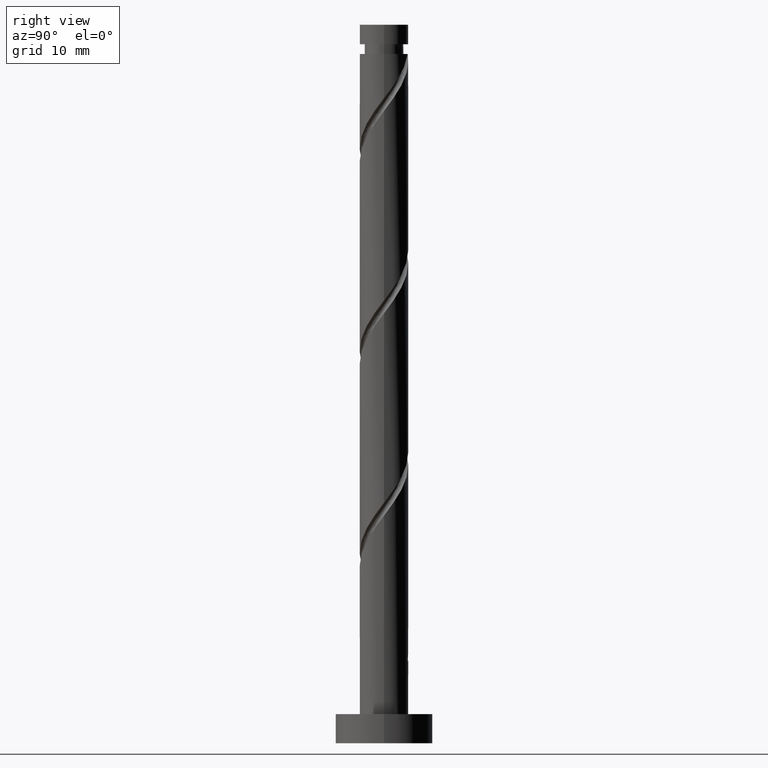
[diagram: clean part render]
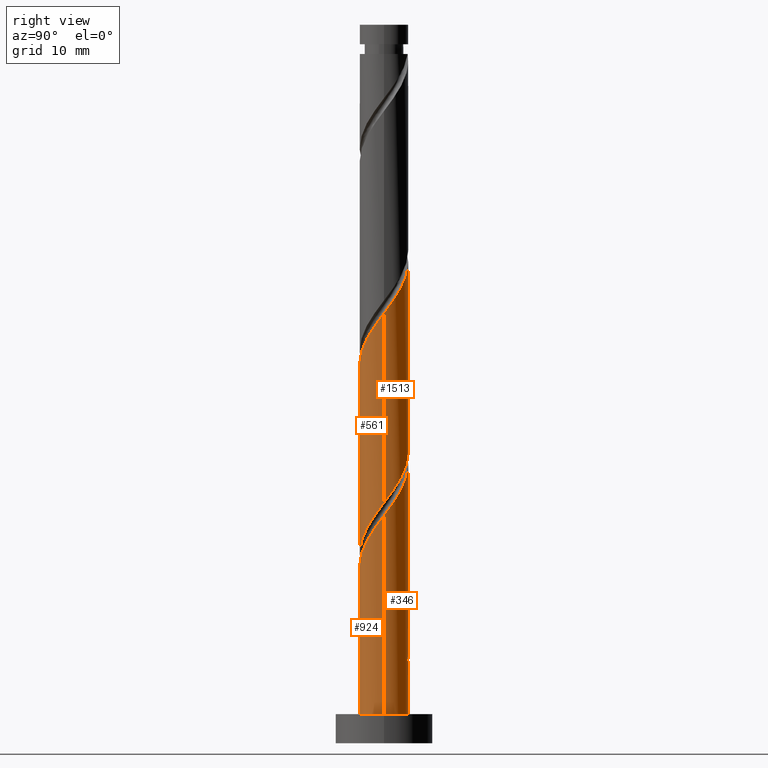
[diagram: same view with one multi-face feature highlighted, each face labeled with its STEP entity id]
A machine part, right view. The highlighted faces form ONE feature: a constant-radius fillet chain: 4 tangent blend faces with common blend radius 2.5 mm. The faces share edges in the B-rep.
Their STEP definitions:
[1] entity #1513 (Cylinder):
#21 = VERTEX_POINT ( 'NONE', #535 ) ;
#36 = CARTESIAN_POINT ( 'NONE',  ( 1.842554741020974607, 1.689672165344843435, 27.23488956316601772 ) ) ;
#43 = CARTESIAN_POINT ( 'NONE',  ( -2.110172521261066692, 1.397840163920918144, 52.75572289649933566 ) ) ;
#108 = CARTESIAN_POINT ( 'NONE',  ( 2.500000000000003109, 0.2512594538148035239, 44.61272503043690563 ) ) ;
#113 = CARTESIAN_POINT ( 'NONE',  ( 2.371204735821965226, 0.8855355973484240195, 45.46405622983268557 ) ) ;
#122 = CARTESIAN_POINT ( 'NONE',  ( -1.574936960780885187, 1.981504166768774500, 51.71405622983267136 ) ) ;
#133 = CARTESIAN_POINT ( 'NONE',  ( -1.397840163920915035, 2.110172521261063583, 31.92238956316600351 ) ) ;
#148 = LINE ( 'NONE', #1572, #1565 ) ;
#234 = EDGE_CURVE ( 'NONE', #21, #551, #1324, .T. ) ;
#261 = CARTESIAN_POINT ( 'NONE',  ( 2.500000000000000888, 0.1424343436160805942, 24.96420309384355463 ) ) ;
#343 = CARTESIAN_POINT ( 'NONE',  ( -0.8855355973484244636, 2.371204735821965226, 50.67238956316600706 ) ) ;
#348 = CARTESIAN_POINT ( 'NONE',  ( 2.500000000000002665, 1.559282689453407426E-15, 44.27842045502907098 ) ) ;
#359 = DIRECTION ( 'NONE',  ( -0.000000000000000000, -0.000000000000000000, -1.000000000000000000 ) ) ;
#372 = CARTESIAN_POINT ( 'NONE',  ( -2.449999999999999734, 0.4974937185533098716, 34.52655622983267847 ) ) ;
#378 = AXIS2_PLACEMENT_3D ( 'NONE', #1085, #359, #1440 ) ;
#416 = VECTOR ( 'NONE', #1156, 1000.000000000000000 ) ;
#445 = CARTESIAN_POINT ( 'NONE',  ( 2.500000000000000444, -2.938648145508366101E-15, 24.77469200463627530 ) ) ;
#453 = CARTESIAN_POINT ( 'NONE',  ( -1.981504166768771391, 1.574936960780883410, 32.96405622983267847 ) ) ;
#463 = CARTESIAN_POINT ( 'NONE',  ( -0.1094518397581948355, 2.528795264178041347, 49.63072289649934277 ) ) ;
#478 = CARTESIAN_POINT ( 'NONE',  ( 1.037592995212146985, 2.274511107092402451, 48.06822289649932856 ) ) ;
#498 = CARTESIAN_POINT ( 'NONE',  ( -0.2839469933725888851, 2.483822478550886448, 30.35988956316601417 ) ) ;
#535 = CARTESIAN_POINT ( 'NONE',  ( -2.500000000000000444, 2.608799884277835441E-15, 35.19135867130293605 ) ) ;
#550 = LINE ( 'NONE', #1170, #416 ) ;
#551 = VERTEX_POINT ( 'NONE', #445 ) ;
#559 = ORIENTED_EDGE ( 'NONE', *, *, #571, .F. ) ;
#571 = EDGE_CURVE ( 'NONE', #1203, #21, #550, .T. ) ;
#589 = CARTESIAN_POINT ( 'NONE',  ( 0.2839469933725902728, 2.483822478550889112, 49.10988956316601417 ) ) ;
#591 = CARTESIAN_POINT ( 'NONE',  ( -2.176354451295366754, 1.230236279064653937, 33.48488956316601417 ) ) ;
#595 = CARTESIAN_POINT ( 'NONE',  ( 1.981504166768774500, 1.574936960780884743, 46.50572289649934987 ) ) ;
#602 = FACE_OUTER_BOUND ( 'NONE', #1362, .T. ) ;
#604 = CARTESIAN_POINT ( 'NONE',  ( -2.500000000000002665, -6.297103168946453709E-16, 54.69508712169576370 ) ) ;
#606 = CARTESIAN_POINT ( 'NONE',  ( -2.499999999999999556, 0.2512594538148041345, 34.85705409589508719 ) ) ;
#671 = VERTEX_POINT ( 'NONE', #833 ) ;
#687 = CARTESIAN_POINT ( 'NONE',  ( 0.1094518397581957930, 2.528795264178037794, 29.83905622983267136 ) ) ;
#743 = CARTESIAN_POINT ( 'NONE',  ( 2.500000000000000444, -2.938648145508366101E-15, 24.77469200463627530 ) ) ;
#750 = CARTESIAN_POINT ( 'NONE',  ( -2.274511107092402451, 1.037592995212146318, 53.27655622983267136 ) ) ;
#751 = ORIENTED_EDGE ( 'NONE', *, *, #234, .F. ) ;
#768 = ORIENTED_EDGE ( 'NONE', *, *, #890, .F. ) ;
#800 = CARTESIAN_POINT ( 'NONE',  ( -2.500000000000003109, -6.297103168946453709E-16, 54.69508712169576370 ) ) ;
#813 = CARTESIAN_POINT ( 'NONE',  ( 1.574936960780883632, 1.981504166768770947, 27.75572289649934277 ) ) ;
#833 = CARTESIAN_POINT ( 'NONE',  ( 2.500000000000002665, 1.559282689453407426E-15, 44.27842045502907098 ) ) ;
#837 = DIRECTION ( 'NONE',  ( -0.000000000000000000, -0.000000000000000000, -1.000000000000000000 ) ) ;
#851 = CARTESIAN_POINT ( 'NONE',  ( -2.371204735821961673, 0.8855355973484234644, 34.00572289649933566 ) ) ;
#890 = EDGE_CURVE ( 'NONE', #671, #1203, #1059, .T. ) ;
#933 = CARTESIAN_POINT ( 'NONE',  ( 0.4974937185533103712, 2.449999999999999734, 29.31822289649934987 ) ) ;
#958 = CARTESIAN_POINT ( 'NONE',  ( 0.6773458265033753811, 2.438849692923736878, 48.58905622983267136 ) ) ;
#988 = CARTESIAN_POINT ( 'NONE',  ( -1.842554741020976383, 1.689672165344846544, 52.23488956316599996 ) ) ;
#1052 = CARTESIAN_POINT ( 'NONE',  ( 0.8855355973484239085, 2.371204735821961229, 28.79738956316599996 ) ) ;
#1059 =( BOUNDED_CURVE ( )  B_SPLINE_CURVE ( 2, ( #348, #108, #1313, #113, #1303, #595, #1062, #1549, #478, #958, #589, #463, #1071, #343, #1559, #122, #988, #43, #750, #1207, #1251, #1486, #604 ),
 .UNSPECIFIED., .F., .T. ) 
 B_SPLINE_CURVE_WITH_KNOTS ( ( 3, 2, 2, 2, 2, 2, 2, 2, 2, 2, 2, 3 ),
 ( 0.4295322023138552492, 0.4375000000000000000, 0.4499999999999999556, 0.4625000000000000222, 0.4749999999999999778, 0.4875000000000000444, 0.5000000000000000000, 0.5124999999999999556, 0.5250000000000000222, 0.5374999999999999778, 0.5500000000000000444, 0.5545322023138553602 ),
 .UNSPECIFIED. ) 
 CURVE ( )  GEOMETRIC_REPRESENTATION_ITEM ( )  RATIONAL_B_SPLINE_CURVE ( ( 0.9039174447099327381, 0.9019565955404621471, 0.9090909090909105039, 0.8978984914501265679, 0.9090909090909105039, 0.8978984914501265679, 0.9090909090909105039, 0.8978984914501265679, 0.9090909090909105039, 0.8978984914501265679, 0.9090909090909105039, 0.8978984914501265679, 0.9090909090909105039, 0.8978984914501265679, 0.9090909090909105039, 0.8978984914501265679, 0.9090909090909105039, 0.8978984914501265679, 0.9090909090909105039, 0.8978984914501265679, 0.9090909090909105039, 0.9050328050005747027, 0.9039174447099325160 ) ) 
 REPRESENTATION_ITEM ( '' )  );
#1062 = CARTESIAN_POINT ( 'NONE',  ( 1.689672165344846988, 1.842554741020975939, 47.02655622983266426 ) ) ;
#1071 = CARTESIAN_POINT ( 'NONE',  ( -0.4974937185533093720, 2.450000000000004174, 50.15155622983268557 ) ) ;
#1085 = CARTESIAN_POINT ( 'NONE',  ( 0.000000000000000000, 0.000000000000000000, 74.00000000000000000 ) ) ;
#1122 = CARTESIAN_POINT ( 'NONE',  ( 2.483822478550886892, 0.2839469933725883299, 25.15155622983268202 ) ) ;
#1156 = DIRECTION ( 'NONE',  ( -0.000000000000000000, -0.000000000000000000, -1.000000000000000000 ) ) ;
#1170 = CARTESIAN_POINT ( 'NONE',  ( -2.500000000000000000, 0.000000000000000000, 74.00000000000000000 ) ) ;
#1203 = VERTEX_POINT ( 'NONE', #800 ) ;
#1207 = CARTESIAN_POINT ( 'NONE',  ( -2.438849692923736878, 0.6773458265033748260, 53.79738956316601417 ) ) ;
#1209 = CARTESIAN_POINT ( 'NONE',  ( -2.500000000000000444, 2.608799884277835441E-15, 35.19135867130293605 ) ) ;
#1221 = CARTESIAN_POINT ( 'NONE',  ( -1.037592995212144764, 2.274511107092399342, 31.40155622983268557 ) ) ;
#1225 = CYLINDRICAL_SURFACE ( 'NONE', #378, 2.500000000000000000 ) ;
#1251 = CARTESIAN_POINT ( 'NONE',  ( -2.483822478550889112, 0.2839469933725897177, 54.31822289649934987 ) ) ;
#1254 = CARTESIAN_POINT ( 'NONE',  ( 2.274511107092399786, 1.037592995212144320, 26.19322289649934987 ) ) ;
#1303 = CARTESIAN_POINT ( 'NONE',  ( 2.176354451295370307, 1.230236279064654381, 45.98488956316601417 ) ) ;
#1313 = CARTESIAN_POINT ( 'NONE',  ( 2.450000000000004174, 0.4974937185533096495, 44.94322289649934277 ) ) ;
#1324 =( BOUNDED_CURVE ( )  B_SPLINE_CURVE ( 2, ( #1209, #606, #372, #851, #591, #453, #1336, #133, #1221, #1539, #498, #687, #933, #1052, #1415, #813, #36, #1477, #1254, #1347, #1122, #261, #743 ),
 .UNSPECIFIED., .F., .F. ) 
 B_SPLINE_CURVE_WITH_KNOTS ( ( 3, 2, 2, 2, 2, 2, 2, 2, 2, 2, 2, 3 ),
 ( 0.6795322023138552492, 0.6875000000000000000, 0.6999999999999999556, 0.7125000000000000222, 0.7249999999999999778, 0.7375000000000000444, 0.7500000000000000000, 0.7624999999999999556, 0.7750000000000000222, 0.7874999999999999778, 0.8000000000000000444, 0.8045322023138552492 ),
 .UNSPECIFIED. ) 
 CURVE ( )  GEOMETRIC_REPRESENTATION_ITEM ( )  RATIONAL_B_SPLINE_CURVE ( ( 0.9039174447099262988, 0.9019565955404558188, 0.9090909090909039536, 0.8978984914501202397, 0.9090909090909039536, 0.8978984914501202397, 0.9090909090909039536, 0.8978984914501202397, 0.9090909090909039536, 0.8978984914501202397, 0.9090909090909039536, 0.8978984914501202397, 0.9090909090909039536, 0.8978984914501202397, 0.9090909090909039536, 0.8978984914501202397, 0.9090909090909039536, 0.8978984914501202397, 0.9090909090909039536, 0.8978984914501202397, 0.9090909090909039536, 0.9050328050005683744, 0.9039174447099262988 ) ) 
 REPRESENTATION_ITEM ( '' )  );
#1336 = CARTESIAN_POINT ( 'NONE',  ( -1.689672165344843879, 1.842554741020974163, 32.44322289649934277 ) ) ;
#1347 = CARTESIAN_POINT ( 'NONE',  ( 2.438849692923733326, 0.6773458265033731607, 25.67238956316599996 ) ) ;
#1362 = EDGE_LOOP ( 'NONE', ( #768, #1515, #751, #559 ) ) ;
#1415 = CARTESIAN_POINT ( 'NONE',  ( 1.230236279064654159, 2.176354451295366754, 28.27655622983267847 ) ) ;
#1440 = DIRECTION ( 'NONE',  ( -1.000000000000000000, 0.000000000000000000, 0.000000000000000000 ) ) ;
#1477 = CARTESIAN_POINT ( 'NONE',  ( 2.110172521261064027, 1.397840163920914813, 26.71405622983267492 ) ) ;
#1486 = CARTESIAN_POINT ( 'NONE',  ( -2.500000000000003997, 0.1424343436160784016, 54.50557603248847727 ) ) ;
#1513 = ADVANCED_FACE ( 'NONE', ( #602 ), #1225, .T. ) ;
#1515 = ORIENTED_EDGE ( 'NONE', *, *, #1562, .T. ) ;
#1539 = CARTESIAN_POINT ( 'NONE',  ( -0.6773458265033731607, 2.438849692923732881, 30.88072289649934277 ) ) ;
#1549 = CARTESIAN_POINT ( 'NONE',  ( 1.397840163920918588, 2.110172521261066692, 47.54738956316599996 ) ) ;
#1559 = CARTESIAN_POINT ( 'NONE',  ( -1.230236279064654825, 2.176354451295369863, 51.19322289649933566 ) ) ;
#1562 = EDGE_CURVE ( 'NONE', #671, #551, #148, .T. ) ;
#1565 = VECTOR ( 'NONE', #837, 1000.000000000000000 ) ;
#1572 = CARTESIAN_POINT ( 'NONE',  ( 2.500000000000000000, 3.061616997868383141E-16, 74.00000000000000000 ) ) ;
[2] entity #561 (Cylinder):
#25 =( BOUNDED_CURVE ( )  B_SPLINE_CURVE ( 2, ( #193, #1017, #1504, #1275, #675, #683, #418, #1161, #298, #1511, #1168, #321, #304, #313, #1147, #426, #896, #794, #1024, #85, #1379, #59, #801 ),
 .UNSPECIFIED., .F., .F. ) 
 B_SPLINE_CURVE_WITH_KNOTS ( ( 3, 2, 2, 2, 2, 2, 2, 2, 2, 2, 2, 3 ),
 ( 0.3045322023138552492, 0.3125000000000000000, 0.3249999999999999556, 0.3375000000000000222, 0.3499999999999999778, 0.3625000000000000444, 0.3750000000000000000, 0.3874999999999999556, 0.4000000000000000222, 0.4124999999999999778, 0.4250000000000000444, 0.4295322023138552492 ),
 .UNSPECIFIED. ) 
 CURVE ( )  GEOMETRIC_REPRESENTATION_ITEM ( )  RATIONAL_B_SPLINE_CURVE ( ( 0.9039174447099327381, 0.9019565955404621471, 0.9090909090909105039, 0.8978984914501265679, 0.9090909090909105039, 0.8978984914501265679, 0.9090909090909105039, 0.8978984914501265679, 0.9090909090909105039, 0.8978984914501265679, 0.9090909090909105039, 0.8978984914501265679, 0.9090909090909105039, 0.8978984914501265679, 0.9090909090909105039, 0.8978984914501265679, 0.9090909090909105039, 0.8978984914501265679, 0.9090909090909105039, 0.8978984914501265679, 0.9090909090909105039, 0.9050328050005749247, 0.9039174447099327381 ) ) 
 REPRESENTATION_ITEM ( '' )  );
#59 = CARTESIAN_POINT ( 'NONE',  ( 2.500000000000003109, -0.1424343436160822041, 44.08890936582179165 ) ) ;
#85 = CARTESIAN_POINT ( 'NONE',  ( 2.438849692923736878, -0.6773458265033750481, 43.38072289649933566 ) ) ;
#102 = CARTESIAN_POINT ( 'NONE',  ( -2.110172521261063583, -1.397840163920915035, 16.29738956316600706 ) ) ;
#148 = LINE ( 'NONE', #1572, #1565 ) ;
#192 = CARTESIAN_POINT ( 'NONE',  ( -2.500000000000003109, -1.919117156250347722E-15, 33.86175378836241379 ) ) ;
#193 = CARTESIAN_POINT ( 'NONE',  ( -2.500000000000003109, -1.919117156250347722E-15, 33.86175378836241379 ) ) ;
#206 = LINE ( 'NONE', #689, #511 ) ;
#210 = CYLINDRICAL_SURFACE ( 'NONE', #817, 2.500000000000000000 ) ;
#223 = CARTESIAN_POINT ( 'NONE',  ( 1.981504166768770947, -1.574936960780883410, 22.54738956316600706 ) ) ;
#230 = CARTESIAN_POINT ( 'NONE',  ( -1.842554741020974163, -1.689672165344843435, 16.81822289649933566 ) ) ;
#298 = CARTESIAN_POINT ( 'NONE',  ( -1.037592995212146540, -2.274511107092402007, 37.65155622983267136 ) ) ;
#304 = CARTESIAN_POINT ( 'NONE',  ( 0.4974937185533097606, -2.450000000000004174, 39.73488956316600706 ) ) ;
#313 = CARTESIAN_POINT ( 'NONE',  ( 0.8855355973484242416, -2.371204735821965226, 40.25572289649933566 ) ) ;
#321 = CARTESIAN_POINT ( 'NONE',  ( 0.1094518397581950991, -2.528795264178041347, 39.21405622983267847 ) ) ;
#335 = CARTESIAN_POINT ( 'NONE',  ( -1.230236279064653937, -2.176354451295366754, 17.85988956316601772 ) ) ;
#342 = CARTESIAN_POINT ( 'NONE',  ( 2.449999999999999734, -0.4974937185533101491, 24.10988956316601417 ) ) ;
#351 = CARTESIAN_POINT ( 'NONE',  ( 2.499999999999999556, -0.2512594538148044676, 24.44038742922842644 ) ) ;
#418 = CARTESIAN_POINT ( 'NONE',  ( -1.689672165344846544, -1.842554741020976161, 36.60988956316599996 ) ) ;
#420 = EDGE_CURVE ( 'NONE', #1239, #1407, #206, .T. ) ;
#426 = CARTESIAN_POINT ( 'NONE',  ( 1.574936960780884743, -1.981504166768774500, 41.29738956316599996 ) ) ;
#445 = CARTESIAN_POINT ( 'NONE',  ( 2.500000000000000444, -2.938648145508366101E-15, 24.77469200463627530 ) ) ;
#511 = VECTOR ( 'NONE', #1174, 1000.000000000000000 ) ;
#551 = VERTEX_POINT ( 'NONE', #445 ) ;
#561 = ADVANCED_FACE ( 'NONE', ( #1413 ), #210, .T. ) ;
#573 = CARTESIAN_POINT ( 'NONE',  ( 1.397840163920915035, -2.110172521261064027, 21.50572289649934277 ) ) ;
#578 = CARTESIAN_POINT ( 'NONE',  ( 2.371204735821961229, -0.8855355973484237975, 23.58905622983267492 ) ) ;
#583 = CARTESIAN_POINT ( 'NONE',  ( -2.500000000000000888, -0.1424343436160809273, 14.54753642717688500 ) ) ;
#593 = CARTESIAN_POINT ( 'NONE',  ( 1.689672165344843435, -1.842554741020974163, 22.02655622983267847 ) ) ;
#614 = EDGE_CURVE ( 'NONE', #1239, #671, #25, .T. ) ;
#670 = CARTESIAN_POINT ( 'NONE',  ( 0.000000000000000000, 0.000000000000000000, 74.00000000000000000 ) ) ;
#671 = VERTEX_POINT ( 'NONE', #833 ) ;
#675 = CARTESIAN_POINT ( 'NONE',  ( -2.176354451295370307, -1.230236279064654825, 35.56822289649933566 ) ) ;
#683 = CARTESIAN_POINT ( 'NONE',  ( -1.981504166768774500, -1.574936960780885187, 36.08905622983268557 ) ) ;
#689 = CARTESIAN_POINT ( 'NONE',  ( -2.500000000000000000, 0.000000000000000000, 74.00000000000000000 ) ) ;
#706 = CARTESIAN_POINT ( 'NONE',  ( -0.1094518397581961261, -2.528795264178037794, 19.42238956316600706 ) ) ;
#790 = ORIENTED_EDGE ( 'NONE', *, *, #420, .T. ) ;
#794 = CARTESIAN_POINT ( 'NONE',  ( 2.110172521261066692, -1.397840163920918588, 42.33905622983267136 ) ) ;
#801 = CARTESIAN_POINT ( 'NONE',  ( 2.500000000000002665, 1.559282689453407426E-15, 44.27842045502907098 ) ) ;
#817 = AXIS2_PLACEMENT_3D ( 'NONE', #670, #908, #1277 ) ;
#822 = CARTESIAN_POINT ( 'NONE',  ( 0.2839469933725885520, -2.483822478550886892, 19.94322289649934632 ) ) ;
#832 = CARTESIAN_POINT ( 'NONE',  ( 2.176354451295366754, -1.230236279064654159, 23.06822289649934987 ) ) ;
#833 = CARTESIAN_POINT ( 'NONE',  ( 2.500000000000002665, 1.559282689453407426E-15, 44.27842045502907098 ) ) ;
#837 = DIRECTION ( 'NONE',  ( -0.000000000000000000, -0.000000000000000000, -1.000000000000000000 ) ) ;
#896 = CARTESIAN_POINT ( 'NONE',  ( 1.842554741020976161, -1.689672165344846544, 41.81822289649933566 ) ) ;
#908 = DIRECTION ( 'NONE',  ( -0.000000000000000000, -0.000000000000000000, -1.000000000000000000 ) ) ;
#966 = ORIENTED_EDGE ( 'NONE', *, *, #614, .F. ) ;
#1017 = CARTESIAN_POINT ( 'NONE',  ( -2.500000000000003553, -0.2512594538148039125, 34.19605836377024133 ) ) ;
#1024 = CARTESIAN_POINT ( 'NONE',  ( 2.274511107092402007, -1.037592995212146540, 42.85988956316600706 ) ) ;
#1070 = CARTESIAN_POINT ( 'NONE',  ( -2.483822478550886892, -0.2839469933725886075, 14.73488956316600884 ) ) ;
#1075 = CARTESIAN_POINT ( 'NONE',  ( -2.500000000000000444, 2.608799884277835441E-15, 14.35802533796960390 ) ) ;
#1102 = EDGE_LOOP ( 'NONE', ( #1328, #966, #790, #1245 ) ) ;
#1147 = CARTESIAN_POINT ( 'NONE',  ( 1.230236279064654603, -2.176354451295370307, 40.77655622983266426 ) ) ;
#1161 = CARTESIAN_POINT ( 'NONE',  ( -1.397840163920918366, -2.110172521261066692, 37.13072289649934277 ) ) ;
#1168 = CARTESIAN_POINT ( 'NONE',  ( -0.2839469933725899953, -2.483822478550889112, 38.69322289649935698 ) ) ;
#1174 = DIRECTION ( 'NONE',  ( -0.000000000000000000, -0.000000000000000000, -1.000000000000000000 ) ) ;
#1191 = CARTESIAN_POINT ( 'NONE',  ( -2.274511107092399342, -1.037592995212144542, 15.77655622983267847 ) ) ;
#1198 = CARTESIAN_POINT ( 'NONE',  ( -2.500000000000000444, 2.608799884277835441E-15, 14.35802533796960390 ) ) ;
#1239 = VERTEX_POINT ( 'NONE', #192 ) ;
#1245 = ORIENTED_EDGE ( 'NONE', *, *, #1482, .F. ) ;
#1275 = CARTESIAN_POINT ( 'NONE',  ( -2.371204735821965226, -0.8855355973484243526, 35.04738956316601417 ) ) ;
#1277 = DIRECTION ( 'NONE',  ( -1.000000000000000000, 0.000000000000000000, 0.000000000000000000 ) ) ;
#1307 = CARTESIAN_POINT ( 'NONE',  ( -1.574936960780883410, -1.981504166768770947, 17.33905622983267492 ) ) ;
#1316 = CARTESIAN_POINT ( 'NONE',  ( 1.037592995212144542, -2.274511107092399342, 20.98488956316601062 ) ) ;
#1328 = ORIENTED_EDGE ( 'NONE', *, *, #1562, .F. ) ;
#1379 = CARTESIAN_POINT ( 'NONE',  ( 2.483822478550889112, -0.2839469933725900508, 43.90155622983267136 ) ) ;
#1407 = VERTEX_POINT ( 'NONE', #1075 ) ;
#1413 = FACE_OUTER_BOUND ( 'NONE', #1102, .T. ) ;
#1418 = CARTESIAN_POINT ( 'NONE',  ( -0.8855355973484237975, -2.371204735821961229, 18.38072289649934632 ) ) ;
#1424 = CARTESIAN_POINT ( 'NONE',  ( 0.6773458265033731607, -2.438849692923732881, 20.46405622983266781 ) ) ;
#1433 = CARTESIAN_POINT ( 'NONE',  ( 2.500000000000000444, -2.938648145508366101E-15, 24.77469200463627530 ) ) ;
#1482 = EDGE_CURVE ( 'NONE', #551, #1407, #1491, .T. ) ;
#1491 =( BOUNDED_CURVE ( )  B_SPLINE_CURVE ( 2, ( #1433, #351, #342, #578, #832, #223, #593, #573, #1316, #1424, #822, #706, #1547, #1418, #335, #1307, #230, #102, #1191, #1563, #1070, #583, #1198 ),
 .UNSPECIFIED., .F., .F. ) 
 B_SPLINE_CURVE_WITH_KNOTS ( ( 3, 2, 2, 2, 2, 2, 2, 2, 2, 2, 2, 3 ),
 ( 0.8045322023138552492, 0.8125000000000000000, 0.8249999999999999556, 0.8375000000000000222, 0.8499999999999999778, 0.8625000000000000444, 0.8750000000000000000, 0.8874999999999999556, 0.9000000000000000222, 0.9124999999999999778, 0.9250000000000000444, 0.9295322023138552492 ),
 .UNSPECIFIED. ) 
 CURVE ( )  GEOMETRIC_REPRESENTATION_ITEM ( )  RATIONAL_B_SPLINE_CURVE ( ( 0.9039174447099262988, 0.9019565955404558188, 0.9090909090909039536, 0.8978984914501202397, 0.9090909090909039536, 0.8978984914501202397, 0.9090909090909039536, 0.8978984914501202397, 0.9090909090909039536, 0.8978984914501202397, 0.9090909090909039536, 0.8978984914501202397, 0.9090909090909039536, 0.8978984914501202397, 0.9090909090909039536, 0.8978984914501202397, 0.9090909090909039536, 0.8978984914501202397, 0.9090909090909039536, 0.8978984914501202397, 0.9090909090909039536, 0.9050328050005683744, 0.9039174447099262988 ) ) 
 REPRESENTATION_ITEM ( '' )  );
#1504 = CARTESIAN_POINT ( 'NONE',  ( -2.450000000000004174, -0.4974937185533099271, 34.52655622983265715 ) ) ;
#1511 = CARTESIAN_POINT ( 'NONE',  ( -0.6773458265033750481, -2.438849692923736878, 38.17238956316599996 ) ) ;
#1547 = CARTESIAN_POINT ( 'NONE',  ( -0.4974937185533099271, -2.449999999999999734, 18.90155622983268557 ) ) ;
#1562 = EDGE_CURVE ( 'NONE', #671, #551, #148, .T. ) ;
#1563 = CARTESIAN_POINT ( 'NONE',  ( -2.438849692923732881, -0.6773458265033731607, 15.25572289649934099 ) ) ;
#1565 = VECTOR ( 'NONE', #837, 1000.000000000000000 ) ;
#1572 = CARTESIAN_POINT ( 'NONE',  ( 2.500000000000000000, 3.061616997868383141E-16, 74.00000000000000000 ) ) ;
[3] entity #346 (Cylinder):
#50 = CARTESIAN_POINT ( 'NONE',  ( 2.500000000000000000, 3.061616997868383141E-16, 74.00000000000000000 ) ) ;
#57 = CARTESIAN_POINT ( 'NONE',  ( -2.176354451295366754, 1.230236279064653937, 12.65155622983267669 ) ) ;
#66 = CARTESIAN_POINT ( 'NONE',  ( -2.371204735821961673, 0.8855355973484234644, 13.17238956316601062 ) ) ;
#87 = DIRECTION ( 'NONE',  ( -1.000000000000000000, 0.000000000000000000, 0.000000000000000000 ) ) ;
#90 = CARTESIAN_POINT ( 'NONE',  ( 0.000000000000000000, 0.000000000000000000, 8.484889563166008841 ) ) ;
#112 = CARTESIAN_POINT ( 'NONE',  ( -2.500000000000003109, 0.1424343436160818432, 12.83890936582179698 ) ) ;
#130 = CARTESIAN_POINT ( 'NONE',  ( 1.397840163920918588, 2.110172521261066692, 26.71405622983267847 ) ) ;
#141 = CARTESIAN_POINT ( 'NONE',  ( -1.842554741020976383, 1.689672165344846544, 31.40155622983267847 ) ) ;
#142 = ORIENTED_EDGE ( 'NONE', *, *, #420, .F. ) ;
#155 = CARTESIAN_POINT ( 'NONE',  ( 0.000000000000000000, 0.000000000000000000, 74.00000000000000000 ) ) ;
#175 = LINE ( 'NONE', #50, #913 ) ;
#185 = CARTESIAN_POINT ( 'NONE',  ( 2.500000000000002665, 1.559282689453407426E-15, 23.44508712169574238 ) ) ;
#192 = CARTESIAN_POINT ( 'NONE',  ( -2.500000000000003109, -1.919117156250347722E-15, 33.86175378836241379 ) ) ;
#206 = LINE ( 'NONE', #689, #511 ) ;
#217 = CARTESIAN_POINT ( 'NONE',  ( -1.230236279064654825, 2.176354451295369863, 9.526556229832674916 ) ) ;
#272 = DIRECTION ( 'NONE',  ( -0.000000000000000000, -0.000000000000000000, -1.000000000000000000 ) ) ;
#290 = CARTESIAN_POINT ( 'NONE',  ( -2.500000000000003109, -1.919117156250347722E-15, 33.86175378836241379 ) ) ;
#320 = CARTESIAN_POINT ( 'NONE',  ( 0.4974937185533103712, 2.449999999999999734, 8.484889563166008841 ) ) ;
#346 = ADVANCED_FACE ( 'NONE', ( #1003 ), #873, .T. ) ;
#347 = CARTESIAN_POINT ( 'NONE',  ( -2.274511107092402451, 1.037592995212146318, 11.60988956316601062 ) ) ;
#358 =( BOUNDED_CURVE ( )  B_SPLINE_CURVE ( 2, ( #1296, #1554, #217, #456, #712, #1055, #347, #701, #476, #112, #1311 ),
 .UNSPECIFIED., .F., .F. ) 
 B_SPLINE_CURVE_WITH_KNOTS ( ( 3, 2, 2, 2, 2, 3 ),
 ( 0.000000000000000000, 0.01249999999999995559, 0.02500000000000002220, 0.03749999999999997780, 0.05000000000000004441, 0.05453220231385524919 ),
 .UNSPECIFIED. ) 
 CURVE ( )  GEOMETRIC_REPRESENTATION_ITEM ( )  RATIONAL_B_SPLINE_CURVE ( ( 0.9090909090909105039, 0.8978984914501265679, 0.9090909090909105039, 0.8978984914501265679, 0.9090909090909105039, 0.8978984914501265679, 0.9090909090909105039, 0.8978984914501265679, 0.9090909090909105039, 0.9050328050005749247, 0.9039174447099327381 ) ) 
 REPRESENTATION_ITEM ( '' )  );
#370 = VERTEX_POINT ( 'NONE', #1287 ) ;
#375 = ORIENTED_EDGE ( 'NONE', *, *, #1292, .F. ) ;
#408 = CARTESIAN_POINT ( 'NONE',  ( -2.500000000000003109, 0.1424343436160818432, 33.67224269915513446 ) ) ;
#413 = ORIENTED_EDGE ( 'NONE', *, *, #1403, .F. ) ;
#420 = EDGE_CURVE ( 'NONE', #1239, #1407, #206, .T. ) ;
#428 = EDGE_CURVE ( 'NONE', #797, #616, #1398, .T. ) ;
#438 = ORIENTED_EDGE ( 'NONE', *, *, #428, .T. ) ;
#456 = CARTESIAN_POINT ( 'NONE',  ( -1.574936960780885187, 1.981504166768774500, 10.04738956316600884 ) ) ;
#468 = DIRECTION ( 'NONE',  ( -0.000000000000000000, -0.000000000000000000, -1.000000000000000000 ) ) ;
#476 = CARTESIAN_POINT ( 'NONE',  ( -2.483822478550889112, 0.2839469933725897177, 12.65155622983267314 ) ) ;
#485 = CARTESIAN_POINT ( 'NONE',  ( -1.574936960780885187, 1.981504166768774500, 30.88072289649934277 ) ) ;
#506 = CARTESIAN_POINT ( 'NONE',  ( 1.689672165344846988, 1.842554741020975939, 26.19322289649934277 ) ) ;
#511 = VECTOR ( 'NONE', #1174, 1000.000000000000000 ) ;
#512 = ORIENTED_EDGE ( 'NONE', *, *, #910, .F. ) ;
#524 = CARTESIAN_POINT ( 'NONE',  ( -0.4974937185533093720, 2.450000000000004174, 29.31822289649934632 ) ) ;
#539 = CARTESIAN_POINT ( 'NONE',  ( -1.397840163920915035, 2.110172521261063583, 11.08905622983266959 ) ) ;
#543 = VERTEX_POINT ( 'NONE', #1026 ) ;
#579 = DIRECTION ( 'NONE',  ( 1.000000000000000000, 0.000000000000000000, 0.000000000000000000 ) ) ;
#616 = VERTEX_POINT ( 'NONE', #809 ) ;
#622 = CARTESIAN_POINT ( 'NONE',  ( 0.2839469933725902728, 2.483822478550889112, 28.27655622983267847 ) ) ;
#667 = CARTESIAN_POINT ( 'NONE',  ( -2.500000000000000444, 2.608799884277835441E-15, 14.35802533796960390 ) ) ;
#674 = CARTESIAN_POINT ( 'NONE',  ( -0.6773458265033731607, 2.438849692923732881, 10.04738956316601239 ) ) ;
#689 = CARTESIAN_POINT ( 'NONE',  ( -2.500000000000000000, 0.000000000000000000, 74.00000000000000000 ) ) ;
#691 = CARTESIAN_POINT ( 'NONE',  ( -2.500000000000000000, 0.000000000000000000, 74.00000000000000000 ) ) ;
#701 = CARTESIAN_POINT ( 'NONE',  ( -2.438849692923736878, 0.6773458265033748260, 12.13072289649934454 ) ) ;
#707 = CARTESIAN_POINT ( 'NONE',  ( 0.000000000000000000, 0.000000000000000000, 3.000000000000000000 ) ) ;
#712 = CARTESIAN_POINT ( 'NONE',  ( -1.842554741020976383, 1.689672165344846544, 10.56822289649934277 ) ) ;
#735 = ORIENTED_EDGE ( 'NONE', *, *, #802, .T. ) ;
#753 = DIRECTION ( 'NONE',  ( -1.000000000000000000, 0.000000000000000000, 0.000000000000000000 ) ) ;
#797 = VERTEX_POINT ( 'NONE', #1199 ) ;
#802 = EDGE_CURVE ( 'NONE', #543, #1349, #1082, .T. ) ;
#809 = CARTESIAN_POINT ( 'NONE',  ( 0.4974937185533103712, 2.450000000000000178, 8.484889563166008841 ) ) ;
#812 = AXIS2_PLACEMENT_3D ( 'NONE', #707, #942, #579 ) ;
#873 = CYLINDRICAL_SURFACE ( 'NONE', #1192, 2.500000000000000000 ) ;
#880 = CARTESIAN_POINT ( 'NONE',  ( -2.274511107092402451, 1.037592995212146318, 32.44322289649933566 ) ) ;
#906 =( BOUNDED_CURVE ( )  B_SPLINE_CURVE ( 2, ( #667, #1393, #1146, #66, #57, #1032, #1402, #539, #1023, #674, #1039, #1527, #320 ),
 .UNSPECIFIED., .F., .F. ) 
 B_SPLINE_CURVE_WITH_KNOTS ( ( 3, 2, 2, 2, 2, 2, 3 ),
 ( 0.9295322023138552492, 0.9375000000000000000, 0.9499999999999999556, 0.9625000000000000222, 0.9749999999999999778, 0.9875000000000000444, 1.000000000000000000 ),
 .UNSPECIFIED. ) 
 CURVE ( )  GEOMETRIC_REPRESENTATION_ITEM ( )  RATIONAL_B_SPLINE_CURVE ( ( 0.9039174447099262988, 0.9019565955404558188, 0.9090909090909039536, 0.8978984914501202397, 0.9090909090909039536, 0.8978984914501202397, 0.9090909090909039536, 0.8978984914501202397, 0.9090909090909039536, 0.8978984914501202397, 0.9090909090909039536, 0.8978984914501202397, 0.9090909090909039536 ) ) 
 REPRESENTATION_ITEM ( '' )  );
#910 = EDGE_CURVE ( 'NONE', #1233, #1239, #1218, .T. ) ;
#913 = VECTOR ( 'NONE', #1153, 1000.000000000000000 ) ;
#942 = DIRECTION ( 'NONE',  ( 0.000000000000000000, 0.000000000000000000, 1.000000000000000000 ) ) ;
#950 = LINE ( 'NONE', #691, #1465 ) ;
#976 = CARTESIAN_POINT ( 'NONE',  ( 2.500000000000003553, 0.2512594538148026913, 23.77939169710358414 ) ) ;
#989 = ORIENTED_EDGE ( 'NONE', *, *, #1172, .T. ) ;
#999 = CARTESIAN_POINT ( 'NONE',  ( 2.500000000000002665, 1.559282689453407426E-15, 23.44508712169574238 ) ) ;
#1003 = FACE_OUTER_BOUND ( 'NONE', #1497, .T. ) ;
#1008 = CARTESIAN_POINT ( 'NONE',  ( -1.230236279064654825, 2.176354451295369863, 30.35988956316599996 ) ) ;
#1023 = CARTESIAN_POINT ( 'NONE',  ( -1.037592995212144764, 2.274511107092399342, 10.56822289649934632 ) ) ;
#1026 = CARTESIAN_POINT ( 'NONE',  ( 2.500000000000000000, 3.061616997868383141E-16, 3.000000000000000000 ) ) ;
#1032 = CARTESIAN_POINT ( 'NONE',  ( -1.981504166768771391, 1.574936960780883410, 12.13072289649934454 ) ) ;
#1039 = CARTESIAN_POINT ( 'NONE',  ( -0.2839469933725888851, 2.483822478550886448, 9.526556229832680245 ) ) ;
#1055 = CARTESIAN_POINT ( 'NONE',  ( -2.110172521261066692, 1.397840163920918144, 11.08905622983267314 ) ) ;
#1075 = CARTESIAN_POINT ( 'NONE',  ( -2.500000000000000444, 2.608799884277835441E-15, 14.35802533796960390 ) ) ;
#1082 = CIRCLE ( 'NONE', #812, 2.500000000000000000 ) ;
#1087 = CARTESIAN_POINT ( 'NONE',  ( 1.981504166768774500, 1.574936960780884743, 25.67238956316601417 ) ) ;
#1096 = CARTESIAN_POINT ( 'NONE',  ( 2.176354451295370307, 1.230236279064654381, 25.15155622983267847 ) ) ;
#1108 = CARTESIAN_POINT ( 'NONE',  ( -2.110172521261066692, 1.397840163920918144, 31.92238956316600351 ) ) ;
#1129 = CARTESIAN_POINT ( 'NONE',  ( 1.037592995212146985, 2.274511107092402451, 27.23488956316600706 ) ) ;
#1146 = CARTESIAN_POINT ( 'NONE',  ( -2.449999999999999734, 0.4974937185533098716, 13.69322289649934454 ) ) ;
#1153 = DIRECTION ( 'NONE',  ( -0.000000000000000000, -0.000000000000000000, -1.000000000000000000 ) ) ;
#1163 = DIRECTION ( 'NONE',  ( 0.000000000000000000, -0.000000000000000000, -1.000000000000000000 ) ) ;
#1167 = CARTESIAN_POINT ( 'NONE',  ( -2.500000000000000000, 0.000000000000000000, 3.000000000000000000 ) ) ;
#1172 = EDGE_CURVE ( 'NONE', #1233, #543, #175, .T. ) ;
#1174 = DIRECTION ( 'NONE',  ( -0.000000000000000000, -0.000000000000000000, -1.000000000000000000 ) ) ;
#1192 = AXIS2_PLACEMENT_3D ( 'NONE', #155, #272, #753 ) ;
#1199 = CARTESIAN_POINT ( 'NONE',  ( -0.4974937185533095385, 2.450000000000004174, 8.484889563166008841 ) ) ;
#1218 =( BOUNDED_CURVE ( )  B_SPLINE_CURVE ( 2, ( #999, #976, #1475, #1332, #1096, #1087, #506, #130, #1129, #1371, #622, #1228, #524, #1574, #1008, #485, #141, #1108, #880, #1344, #1496, #408, #290 ),
 .UNSPECIFIED., .F., .F. ) 
 B_SPLINE_CURVE_WITH_KNOTS ( ( 3, 2, 2, 2, 2, 2, 2, 2, 2, 2, 2, 3 ),
 ( 0.1795322023138552214, 0.1875000000000000000, 0.1999999999999999556, 0.2125000000000000222, 0.2249999999999999778, 0.2375000000000000444, 0.2500000000000000000, 0.2624999999999999556, 0.2750000000000000222, 0.2874999999999999778, 0.3000000000000000444, 0.3045322023138552492 ),
 .UNSPECIFIED. ) 
 CURVE ( )  GEOMETRIC_REPRESENTATION_ITEM ( )  RATIONAL_B_SPLINE_CURVE ( ( 0.9039174447099327381, 0.9019565955404620361, 0.9090909090909105039, 0.8978984914501265679, 0.9090909090909105039, 0.8978984914501265679, 0.9090909090909105039, 0.8978984914501265679, 0.9090909090909105039, 0.8978984914501265679, 0.9090909090909105039, 0.8978984914501265679, 0.9090909090909105039, 0.8978984914501265679, 0.9090909090909105039, 0.8978984914501265679, 0.9090909090909105039, 0.8978984914501265679, 0.9090909090909105039, 0.8978984914501265679, 0.9090909090909105039, 0.9050328050005749247, 0.9039174447099327381 ) ) 
 REPRESENTATION_ITEM ( '' )  );
#1228 = CARTESIAN_POINT ( 'NONE',  ( -0.1094518397581948355, 2.528795264178041347, 28.79738956316601062 ) ) ;
#1233 = VERTEX_POINT ( 'NONE', #185 ) ;
#1239 = VERTEX_POINT ( 'NONE', #192 ) ;
#1287 = CARTESIAN_POINT ( 'NONE',  ( -2.500000000000003109, -1.919117156250347722E-15, 13.02842045502907986 ) ) ;
#1292 = EDGE_CURVE ( 'NONE', #1407, #616, #906, .T. ) ;
#1296 = CARTESIAN_POINT ( 'NONE',  ( -0.4974937185533095385, 2.450000000000004174, 8.484889563166008841 ) ) ;
#1311 = CARTESIAN_POINT ( 'NONE',  ( -2.500000000000003109, -1.919117156250347722E-15, 13.02842045502907986 ) ) ;
#1332 = CARTESIAN_POINT ( 'NONE',  ( 2.371204735821965226, 0.8855355973484240195, 24.63072289649933921 ) ) ;
#1344 = CARTESIAN_POINT ( 'NONE',  ( -2.438849692923736878, 0.6773458265033748260, 32.96405622983267847 ) ) ;
#1349 = VERTEX_POINT ( 'NONE', #1167 ) ;
#1366 = EDGE_CURVE ( 'NONE', #797, #370, #358, .T. ) ;
#1371 = CARTESIAN_POINT ( 'NONE',  ( 0.6773458265033753811, 2.438849692923736878, 27.75572289649933921 ) ) ;
#1393 = CARTESIAN_POINT ( 'NONE',  ( -2.499999999999999556, 0.2512594538148041345, 14.02372076256176570 ) ) ;
#1398 = CIRCLE ( 'NONE', #1441, 2.500000000000000000 ) ;
#1402 = CARTESIAN_POINT ( 'NONE',  ( -1.689672165344843879, 1.842554741020974163, 11.60988956316601417 ) ) ;
#1403 = EDGE_CURVE ( 'NONE', #370, #1349, #950, .T. ) ;
#1407 = VERTEX_POINT ( 'NONE', #1075 ) ;
#1441 = AXIS2_PLACEMENT_3D ( 'NONE', #90, #1163, #87 ) ;
#1465 = VECTOR ( 'NONE', #468, 1000.000000000000000 ) ;
#1475 = CARTESIAN_POINT ( 'NONE',  ( 2.450000000000004174, 0.4974937185533096495, 24.10988956316600706 ) ) ;
#1496 = CARTESIAN_POINT ( 'NONE',  ( -2.483822478550889112, 0.2839469933725897177, 33.48488956316601417 ) ) ;
#1497 = EDGE_LOOP ( 'NONE', ( #512, #989, #735, #413, #1500, #438, #375, #142 ) ) ;
#1500 = ORIENTED_EDGE ( 'NONE', *, *, #1366, .F. ) ;
#1527 = CARTESIAN_POINT ( 'NONE',  ( 0.1094518397581957930, 2.528795264178037794, 9.005722896499340990 ) ) ;
#1554 = CARTESIAN_POINT ( 'NONE',  ( -0.8855355973484244636, 2.371204735821965226, 9.005722896499342767 ) ) ;
#1574 = CARTESIAN_POINT ( 'NONE',  ( -0.8855355973484244636, 2.371204735821965226, 29.83905622983267136 ) ) ;
[4] entity #924 (Cylinder):
#2 = CARTESIAN_POINT ( 'NONE',  ( 2.500000000000002665, 1.559282689453407426E-15, 23.44508712169574238 ) ) ;
#50 = CARTESIAN_POINT ( 'NONE',  ( 2.500000000000000000, 3.061616997868383141E-16, 74.00000000000000000 ) ) ;
#58 = EDGE_CURVE ( 'NONE', #1349, #543, #638, .T. ) ;
#71 = ORIENTED_EDGE ( 'NONE', *, *, #129, .F. ) ;
#110 = CARTESIAN_POINT ( 'NONE',  ( 2.274511107092402007, -1.037592995212146540, 22.02655622983267847 ) ) ;
#115 = CARTESIAN_POINT ( 'NONE',  ( 0.1094518397581950991, -2.528795264178041347, 18.38072289649933921 ) ) ;
#124 = CARTESIAN_POINT ( 'NONE',  ( -1.397840163920918366, -2.110172521261066692, 16.29738956316600706 ) ) ;
#129 = EDGE_CURVE ( 'NONE', #370, #1233, #1548, .T. ) ;
#165 = ORIENTED_EDGE ( 'NONE', *, *, #1172, .F. ) ;
#175 = LINE ( 'NONE', #50, #913 ) ;
#185 = CARTESIAN_POINT ( 'NONE',  ( 2.500000000000002665, 1.559282689453407426E-15, 23.44508712169574238 ) ) ;
#189 = CARTESIAN_POINT ( 'NONE',  ( 0.000000000000000000, 0.000000000000000000, 3.000000000000000000 ) ) ;
#204 = CARTESIAN_POINT ( 'NONE',  ( -2.500000000000003109, -1.919117156250347722E-15, 13.02842045502907986 ) ) ;
#233 = CARTESIAN_POINT ( 'NONE',  ( -0.6773458265033750481, -2.438849692923736878, 17.33905622983267136 ) ) ;
#240 = CARTESIAN_POINT ( 'NONE',  ( -0.2839469933725899953, -2.483822478550889112, 17.85988956316600706 ) ) ;
#249 = CARTESIAN_POINT ( 'NONE',  ( -1.981504166768774500, -1.574936960780885187, 15.25572289649934632 ) ) ;
#264 = ORIENTED_EDGE ( 'NONE', *, *, #1403, .T. ) ;
#269 = DIRECTION ( 'NONE',  ( -1.000000000000000000, 0.000000000000000000, 0.000000000000000000 ) ) ;
#332 = CARTESIAN_POINT ( 'NONE',  ( 2.438849692923736878, -0.6773458265033750481, 22.54738956316600706 ) ) ;
#369 = DIRECTION ( 'NONE',  ( -0.000000000000000000, -0.000000000000000000, -1.000000000000000000 ) ) ;
#370 = VERTEX_POINT ( 'NONE', #1287 ) ;
#412 = AXIS2_PLACEMENT_3D ( 'NONE', #1353, #369, #269 ) ;
#446 = ORIENTED_EDGE ( 'NONE', *, *, #58, .T. ) ;
#468 = DIRECTION ( 'NONE',  ( -0.000000000000000000, -0.000000000000000000, -1.000000000000000000 ) ) ;
#475 = CARTESIAN_POINT ( 'NONE',  ( -2.500000000000003553, -0.2512594538148039125, 13.36272503043692339 ) ) ;
#480 = CARTESIAN_POINT ( 'NONE',  ( 2.500000000000003109, -0.1424343436160831478, 23.25557603248846661 ) ) ;
#543 = VERTEX_POINT ( 'NONE', #1026 ) ;
#597 = CARTESIAN_POINT ( 'NONE',  ( 1.230236279064654603, -2.176354451295370307, 19.94322289649934632 ) ) ;
#613 = CARTESIAN_POINT ( 'NONE',  ( 1.842554741020976161, -1.689672165344846544, 20.98488956316600351 ) ) ;
#638 = CIRCLE ( 'NONE', #664, 2.500000000000000000 ) ;
#664 = AXIS2_PLACEMENT_3D ( 'NONE', #189, #1445, #805 ) ;
#691 = CARTESIAN_POINT ( 'NONE',  ( -2.500000000000000000, 0.000000000000000000, 74.00000000000000000 ) ) ;
#715 = CARTESIAN_POINT ( 'NONE',  ( 2.110172521261066692, -1.397840163920918588, 21.50572289649933921 ) ) ;
#805 = DIRECTION ( 'NONE',  ( 1.000000000000000000, 0.000000000000000000, 0.000000000000000000 ) ) ;
#841 = CARTESIAN_POINT ( 'NONE',  ( -2.450000000000004174, -0.4974937185533099271, 13.69322289649934454 ) ) ;
#913 = VECTOR ( 'NONE', #1153, 1000.000000000000000 ) ;
#924 = ADVANCED_FACE ( 'NONE', ( #965 ), #1451, .T. ) ;
#950 = LINE ( 'NONE', #691, #1465 ) ;
#953 = CARTESIAN_POINT ( 'NONE',  ( 2.483822478550889112, -0.2839469933725900508, 23.06822289649934277 ) ) ;
#960 = CARTESIAN_POINT ( 'NONE',  ( -1.689672165344846544, -1.842554741020976161, 15.77655622983267492 ) ) ;
#965 = FACE_OUTER_BOUND ( 'NONE', #1570, .T. ) ;
#979 = CARTESIAN_POINT ( 'NONE',  ( 1.574936960780884743, -1.981504166768774500, 20.46405622983267136 ) ) ;
#1026 = CARTESIAN_POINT ( 'NONE',  ( 2.500000000000000000, 3.061616997868383141E-16, 3.000000000000000000 ) ) ;
#1080 = CARTESIAN_POINT ( 'NONE',  ( -1.037592995212146540, -2.274511107092402007, 16.81822289649933921 ) ) ;
#1153 = DIRECTION ( 'NONE',  ( -0.000000000000000000, -0.000000000000000000, -1.000000000000000000 ) ) ;
#1167 = CARTESIAN_POINT ( 'NONE',  ( -2.500000000000000000, 0.000000000000000000, 3.000000000000000000 ) ) ;
#1172 = EDGE_CURVE ( 'NONE', #1233, #543, #175, .T. ) ;
#1233 = VERTEX_POINT ( 'NONE', #185 ) ;
#1287 = CARTESIAN_POINT ( 'NONE',  ( -2.500000000000003109, -1.919117156250347722E-15, 13.02842045502907986 ) ) ;
#1300 = CARTESIAN_POINT ( 'NONE',  ( 0.4974937185533097606, -2.450000000000004174, 18.90155622983267136 ) ) ;
#1320 = CARTESIAN_POINT ( 'NONE',  ( 0.8855355973484242416, -2.371204735821965226, 19.42238956316601062 ) ) ;
#1349 = VERTEX_POINT ( 'NONE', #1167 ) ;
#1353 = CARTESIAN_POINT ( 'NONE',  ( 0.000000000000000000, 0.000000000000000000, 74.00000000000000000 ) ) ;
#1403 = EDGE_CURVE ( 'NONE', #370, #1349, #950, .T. ) ;
#1445 = DIRECTION ( 'NONE',  ( 0.000000000000000000, 0.000000000000000000, 1.000000000000000000 ) ) ;
#1451 = CYLINDRICAL_SURFACE ( 'NONE', #412, 2.500000000000000000 ) ;
#1465 = VECTOR ( 'NONE', #468, 1000.000000000000000 ) ;
#1548 =( BOUNDED_CURVE ( )  B_SPLINE_CURVE ( 2, ( #204, #475, #841, #1568, #1561, #249, #960, #124, #1080, #233, #240, #115, #1300, #1320, #597, #979, #613, #715, #110, #332, #953, #480, #2 ),
 .UNSPECIFIED., .F., .F. ) 
 B_SPLINE_CURVE_WITH_KNOTS ( ( 3, 2, 2, 2, 2, 2, 2, 2, 2, 2, 2, 3 ),
 ( 0.05453220231385524919, 0.06250000000000000000, 0.07499999999999995559, 0.08750000000000002220, 0.09999999999999997780, 0.1125000000000000444, 0.1250000000000000000, 0.1374999999999999556, 0.1500000000000000222, 0.1624999999999999778, 0.1750000000000000444, 0.1795322023138552214 ),
 .UNSPECIFIED. ) 
 CURVE ( )  GEOMETRIC_REPRESENTATION_ITEM ( )  RATIONAL_B_SPLINE_CURVE ( ( 0.9039174447099327381, 0.9019565955404621471, 0.9090909090909105039, 0.8978984914501265679, 0.9090909090909105039, 0.8978984914501265679, 0.9090909090909105039, 0.8978984914501265679, 0.9090909090909105039, 0.8978984914501265679, 0.9090909090909105039, 0.8978984914501265679, 0.9090909090909105039, 0.8978984914501265679, 0.9090909090909105039, 0.8978984914501265679, 0.9090909090909105039, 0.8978984914501265679, 0.9090909090909105039, 0.8978984914501265679, 0.9090909090909105039, 0.9050328050005749247, 0.9039174447099327381 ) ) 
 REPRESENTATION_ITEM ( '' )  );
#1561 = CARTESIAN_POINT ( 'NONE',  ( -2.176354451295370307, -1.230236279064654825, 14.73488956316600529 ) ) ;
#1568 = CARTESIAN_POINT ( 'NONE',  ( -2.371204735821965226, -0.8855355973484243526, 14.21405622983267669 ) ) ;
#1570 = EDGE_LOOP ( 'NONE', ( #165, #71, #264, #446 ) ) ;